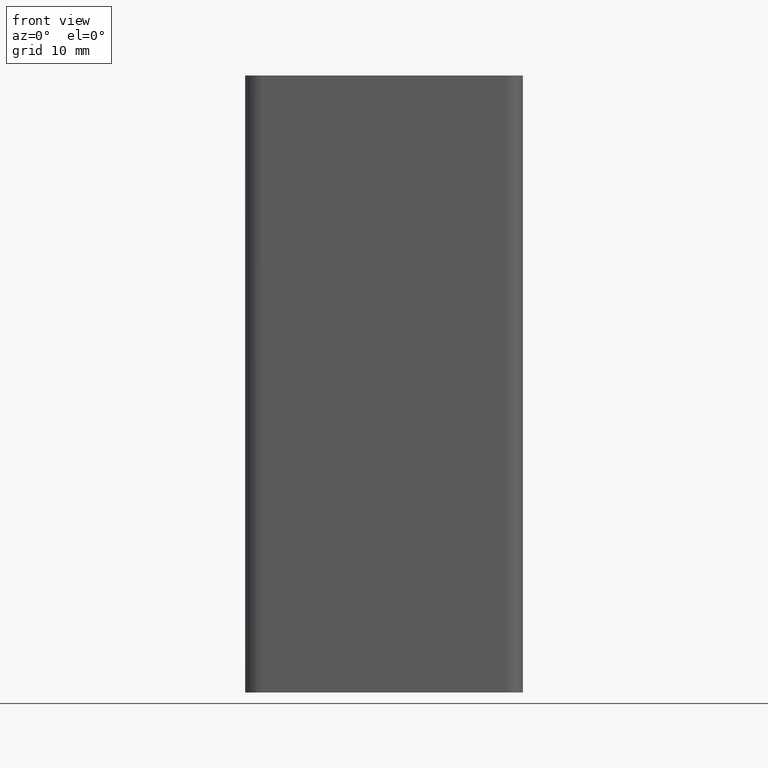
[diagram: clean part render]
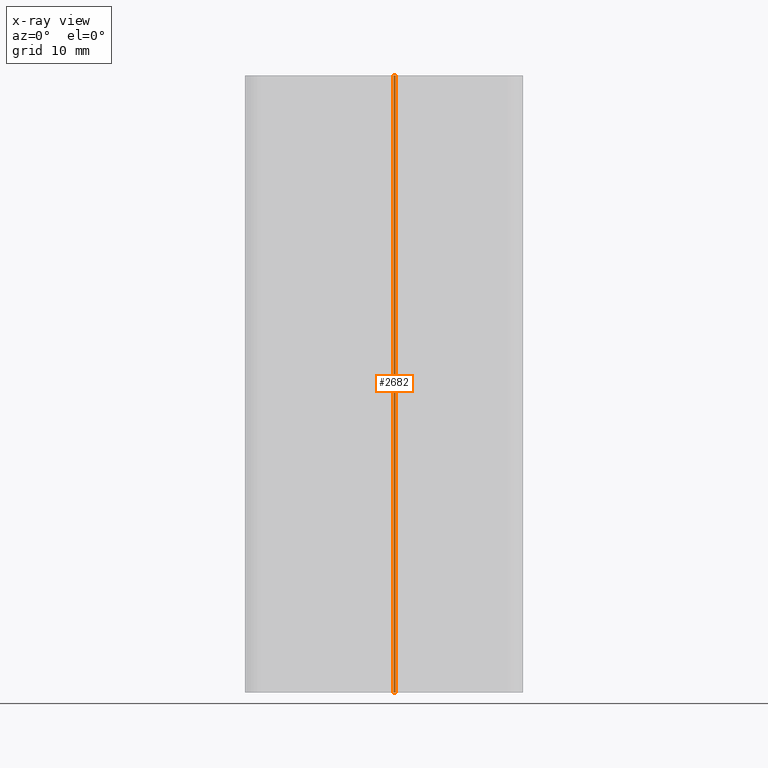
[diagram: x-ray — body ghosted, one internal face saturated and labeled with its STEP entity id]
A machine part, front view, then the same camera in x-ray: the body is ghosted and one INTERNAL B-rep face — a face not visible from any outside direction — is saturated and labeled: STEP entity #2682.
In plain terms, the highlighted cylindrical surface (edge-blend (fillet) strip) has radius 0.3 mm, axis along (0, 0, 1).
Its self-contained STEP definition (entity closure, byte-faithful):
#156=FACE_OUTER_BOUND('',#294,.T.);
#294=EDGE_LOOP('',(#1985,#1986,#1987,#1988));
#494=LINE('',#4277,#750);
#495=LINE('',#4283,#751);
#750=VECTOR('',#3454,100.);
#751=VECTOR('',#3461,100.);
#975=CIRCLE('',#2905,0.3);
#976=CIRCLE('',#2906,0.3);
#1175=VERTEX_POINT('',#4274);
#1176=VERTEX_POINT('',#4276);
#1177=VERTEX_POINT('',#4280);
#1178=VERTEX_POINT('',#4282);
#1511=EDGE_CURVE('',#1176,#1175,#494,.T.);
#1513=EDGE_CURVE('',#1177,#1175,#975,.T.);
#1514=EDGE_CURVE('',#1178,#1177,#495,.T.);
#1515=EDGE_CURVE('',#1176,#1178,#976,.T.);
#1985=ORIENTED_EDGE('',*,*,#1513,.F.);
#1986=ORIENTED_EDGE('',*,*,#1514,.F.);
#1987=ORIENTED_EDGE('',*,*,#1515,.F.);
#1988=ORIENTED_EDGE('',*,*,#1511,.T.);
#2582=CYLINDRICAL_SURFACE('',#2904,0.3);
#2682=ADVANCED_FACE('',(#156),#2582,.T.);
#2904=AXIS2_PLACEMENT_3D('',#4279,#3457,#3458);
#2905=AXIS2_PLACEMENT_3D('',#4281,#3459,#3460);
#2906=AXIS2_PLACEMENT_3D('',#4284,#3462,#3463);
#3454=DIRECTION('',(0.,0.,1.));
#3457=DIRECTION('center_axis',(0.,0.,1.));
#3458=DIRECTION('ref_axis',(-0.70710678118655,-0.707106781186545,0.));
#3459=DIRECTION('center_axis',(0.,0.,1.));
#3460=DIRECTION('ref_axis',(-0.70710678118655,-0.707106781186545,0.));
#3461=DIRECTION('',(0.,0.,1.));
#3462=DIRECTION('center_axis',(0.,0.,-1.));
#3463=DIRECTION('ref_axis',(-0.70710678118655,-0.707106781186545,0.));
#4274=CARTESIAN_POINT('',(1.55147186257614,-3.24852813742385,100.));
#4276=CARTESIAN_POINT('',(1.55147186257614,-3.24852813742385,0.));
#4277=CARTESIAN_POINT('',(1.55147186257614,-3.24852813742385,0.));
#4279=CARTESIAN_POINT('Origin',(1.68076118445748,-3.51923881554251,0.));
#4280=CARTESIAN_POINT('',(1.89289321881345,-3.30710678118654,100.));
#4281=CARTESIAN_POINT('Origin',(1.68076118445748,-3.51923881554251,100.));
#4282=CARTESIAN_POINT('',(1.89289321881345,-3.30710678118654,0.));
#4283=CARTESIAN_POINT('',(1.89289321881345,-3.30710678118654,0.));
#4284=CARTESIAN_POINT('Origin',(1.68076118445748,-3.51923881554251,0.));